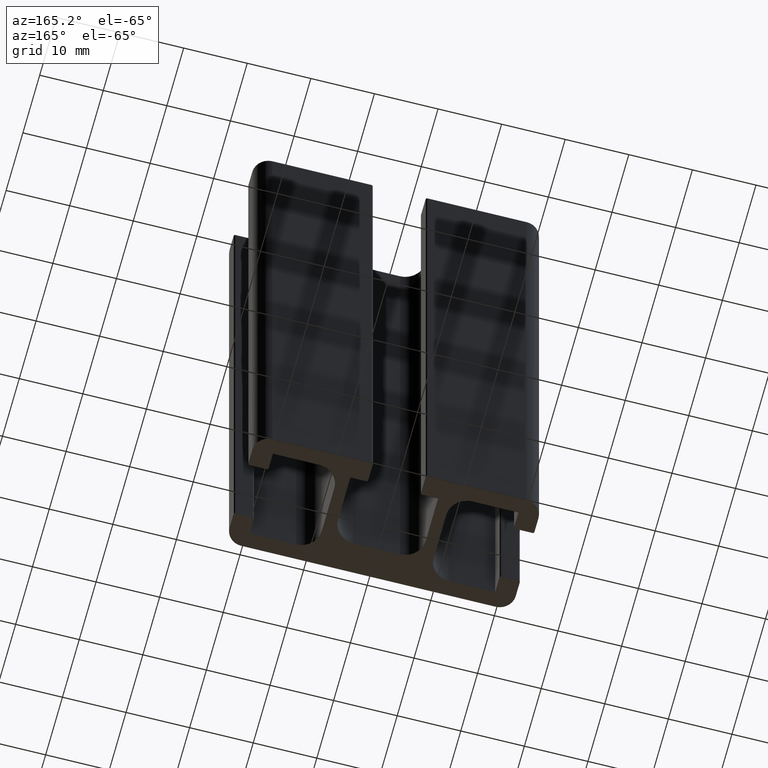
[diagram: clean part render]
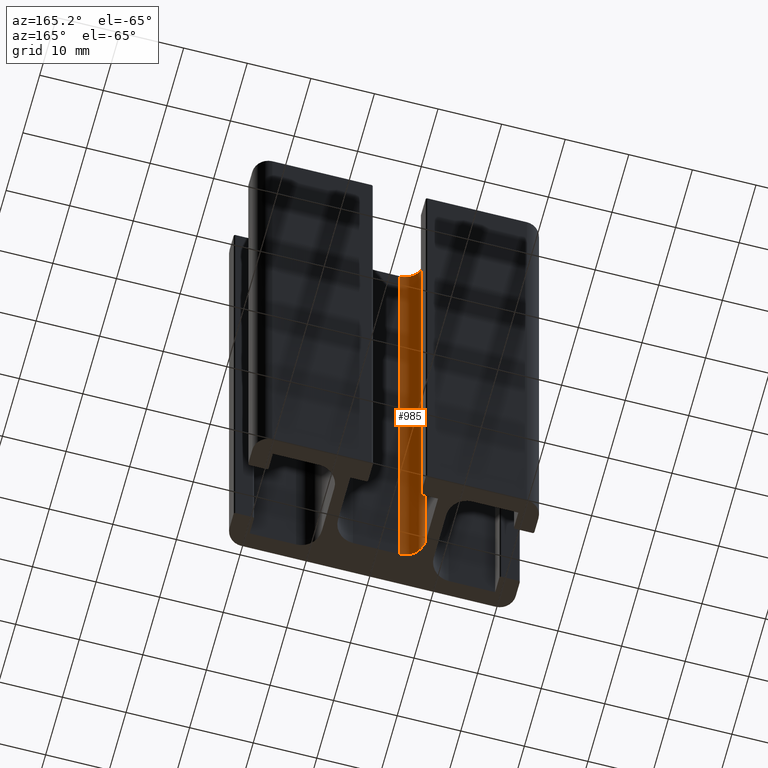
[diagram: same view with one face highlighted and labeled with its STEP entity id]
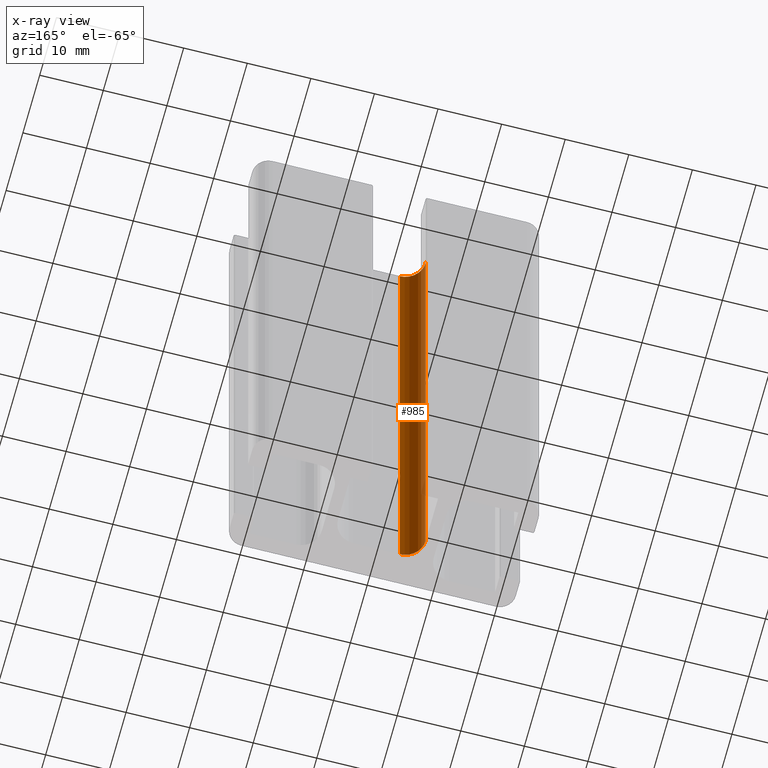
[diagram: x-ray of the same camera — body ghosted, the highlighted face saturated]
A machine part, auxiliary view. The second image highlights one B-rep face of the part: STEP entity #985.
The next image is the same camera in x-ray: the body ghosted, the highlighted face saturated — about 16% of this face is hidden behind the body in this view.
In plain terms, the highlighted cylindrical surface (edge-blend (fillet) strip) has radius 3.2 mm, axis along (0, 0, 1).
Its self-contained STEP definition (entity closure, byte-faithful):
#53=FACE_OUTER_BOUND('',#105,.T.);
#105=EDGE_LOOP('',(#687,#688,#689,#690));
#166=LINE('',#1481,#272);
#167=LINE('',#1487,#273);
#272=VECTOR('',#1178,100.);
#273=VECTOR('',#1185,100.);
#369=CIRCLE('',#1048,3.1999999999936);
#370=CIRCLE('',#1049,3.1999999999936);
#423=VERTEX_POINT('',#1477);
#424=VERTEX_POINT('',#1479);
#425=VERTEX_POINT('',#1483);
#426=VERTEX_POINT('',#1485);
#530=EDGE_CURVE('',#424,#423,#166,.T.);
#531=EDGE_CURVE('',#423,#425,#369,.T.);
#532=EDGE_CURVE('',#426,#424,#370,.T.);
#533=EDGE_CURVE('',#426,#425,#167,.T.);
#687=ORIENTED_EDGE('',*,*,#531,.F.);
#688=ORIENTED_EDGE('',*,*,#530,.F.);
#689=ORIENTED_EDGE('',*,*,#532,.F.);
#690=ORIENTED_EDGE('',*,*,#533,.T.);
#959=CYLINDRICAL_SURFACE('',#1047,3.1999999999936);
#985=ADVANCED_FACE('',(#53),#959,.F.);
#1047=AXIS2_PLACEMENT_3D('',#1482,#1179,#1180);
#1048=AXIS2_PLACEMENT_3D('',#1484,#1181,#1182);
#1049=AXIS2_PLACEMENT_3D('',#1486,#1183,#1184);
#1178=DIRECTION('',(0.,0.,1.));
#1179=DIRECTION('center_axis',(0.,0.,1.));
#1180=DIRECTION('ref_axis',(-1.,-1.99827134006858E-12,0.));
#1181=DIRECTION('center_axis',(0.,0.,-1.));
#1182=DIRECTION('ref_axis',(-1.,-1.99827134006858E-12,0.));
#1183=DIRECTION('center_axis',(0.,0.,1.));
#1184=DIRECTION('ref_axis',(-1.,-1.99827134006858E-12,0.));
#1185=DIRECTION('',(0.,0.,1.));
#1477=CARTESIAN_POINT('',(-3.7,-4.44999999998722,100.));
#1479=CARTESIAN_POINT('',(-3.7,-4.44999999998722,0.));
#1481=CARTESIAN_POINT('',(-3.7,-4.44999999998722,0.));
#1482=CARTESIAN_POINT('Origin',(-3.7000000000064,-1.24999999999362,0.));
#1483=CARTESIAN_POINT('',(-6.9,-1.25000000000001,100.));
#1484=CARTESIAN_POINT('Origin',(-3.7000000000064,-1.24999999999362,100.));
#1485=CARTESIAN_POINT('',(-6.9,-1.25000000000001,0.));
#1486=CARTESIAN_POINT('Origin',(-3.7000000000064,-1.24999999999362,0.));
#1487=CARTESIAN_POINT('',(-6.9,-1.25000000000001,0.));